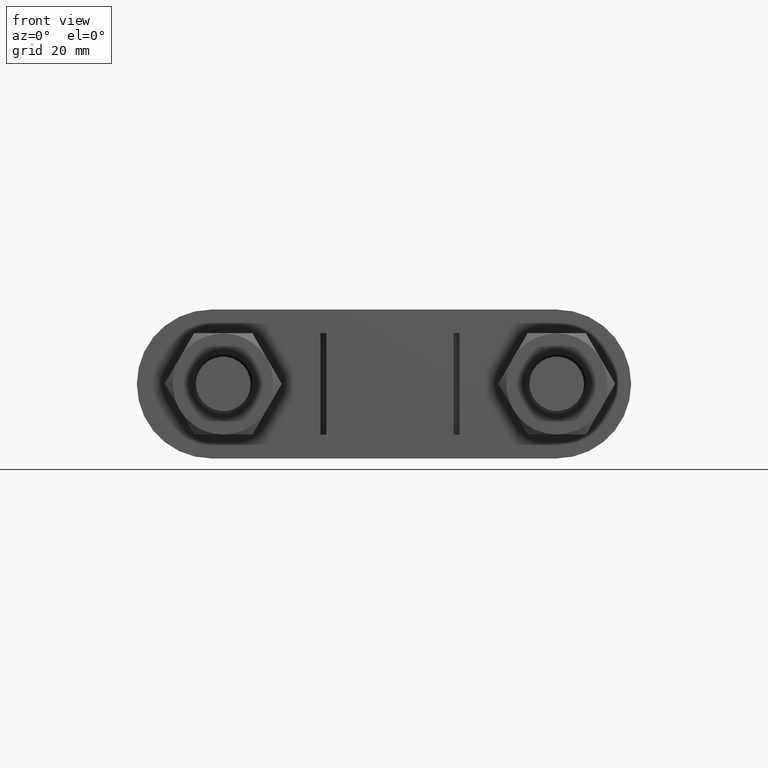
[diagram: clean part render]
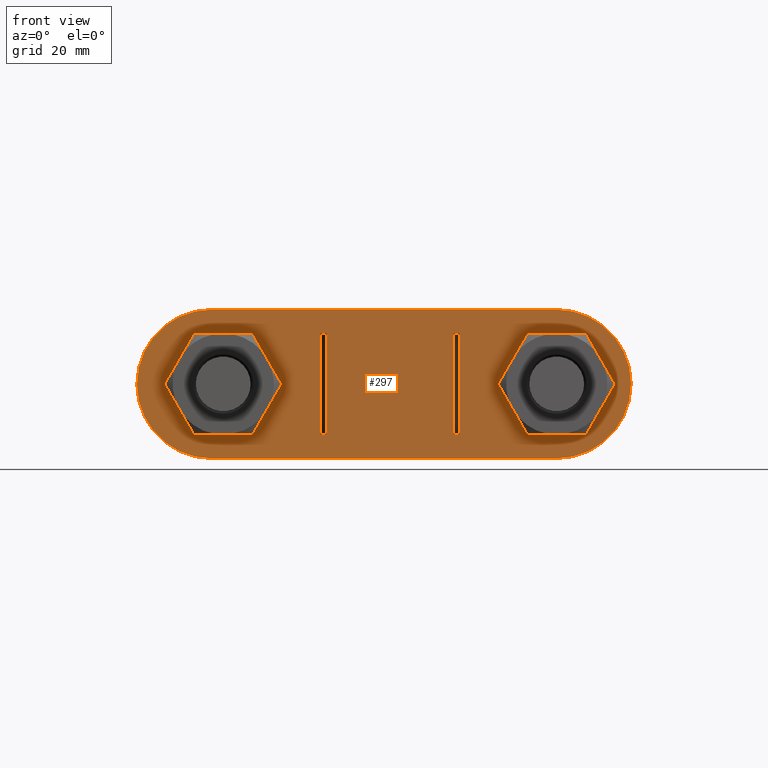
[diagram: same view with one face highlighted and labeled with its STEP entity id]
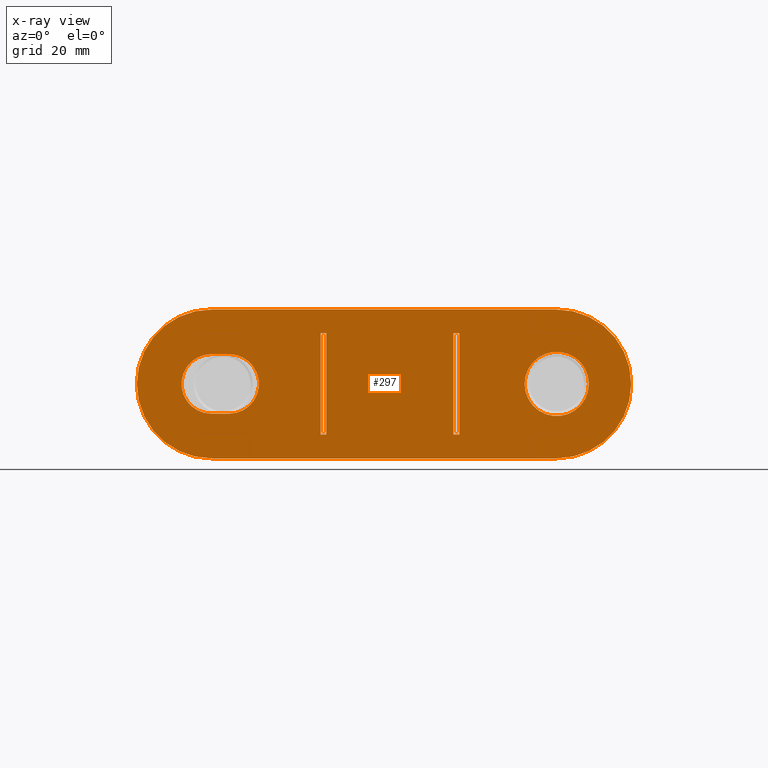
[diagram: x-ray of the same camera — body ghosted, the highlighted face saturated]
A machine part, front view. The second image highlights one B-rep face of the part: STEP entity #297.
The next image is the same camera in x-ray: the body ghosted, the highlighted face saturated — about 0% of this face is hidden behind the body in this view.
In plain terms, the highlighted planar face has unit normal (0, 1, -0).
Its self-contained STEP definition (entity closure, byte-faithful):
#297 = ADVANCED_FACE( '', ( #451, #452, #453, #454, #455 ), #456, .F. );
#451 = FACE_OUTER_BOUND( '', #1533, .T. );
#452 = FACE_BOUND( '', #1534, .T. );
#453 = FACE_BOUND( '', #1535, .T. );
#454 = FACE_BOUND( '', #1536, .T. );
#455 = FACE_BOUND( '', #1537, .T. );
#456 = PLANE( '', #1538 );
#1533 = EDGE_LOOP( '', ( #1912, #1913, #1914, #1915, #1916, #1917 ) );
#1534 = EDGE_LOOP( '', ( #1918, #1919, #1920, #1921 ) );
#1535 = EDGE_LOOP( '', ( #1922 ) );
#1536 = EDGE_LOOP( '', ( #1923, #1924, #1925, #1926 ) );
#1537 = EDGE_LOOP( '', ( #1927, #1928, #1929, #1930 ) );
#1538 = AXIS2_PLACEMENT_3D( '', #1931, #1932, #1933 );
#1912 = ORIENTED_EDGE( '', *, *, #2593, .F. );
#1913 = ORIENTED_EDGE( '', *, *, #2594, .F. );
#1914 = ORIENTED_EDGE( '', *, *, #2595, .F. );
#1915 = ORIENTED_EDGE( '', *, *, #2596, .F. );
#1916 = ORIENTED_EDGE( '', *, *, #2597, .F. );
#1917 = ORIENTED_EDGE( '', *, *, #2598, .F. );
#1918 = ORIENTED_EDGE( '', *, *, #2599, .F. );
#1919 = ORIENTED_EDGE( '', *, *, #2600, .T. );
#1920 = ORIENTED_EDGE( '', *, *, #2601, .T. );
#1921 = ORIENTED_EDGE( '', *, *, #2602, .F. );
#1922 = ORIENTED_EDGE( '', *, *, #2603, .T. );
#1923 = ORIENTED_EDGE( '', *, *, #2604, .F. );
#1924 = ORIENTED_EDGE( '', *, *, #2605, .F. );
#1925 = ORIENTED_EDGE( '', *, *, #2606, .F. );
#1926 = ORIENTED_EDGE( '', *, *, #2607, .F. );
#1927 = ORIENTED_EDGE( '', *, *, #2608, .T. );
#1928 = ORIENTED_EDGE( '', *, *, #2609, .T. );
#1929 = ORIENTED_EDGE( '', *, *, #2610, .F. );
#1930 = ORIENTED_EDGE( '', *, *, #2611, .F. );
#1931 = CARTESIAN_POINT( '', ( -30.0000000000000, 30.6000000000000, 1.40483290671490E-011 ) );
#1932 = DIRECTION( '', ( 7.63385177609124E-032, 1.00000000000000, -6.31954276302268E-016 ) );
#1933 = DIRECTION( '', ( 1.00000000000000, -1.09476442525376E-047, 1.20797533339895E-016 ) );
#2593 = EDGE_CURVE( '', #2863, #2864, #2865, .T. );
#2594 = EDGE_CURVE( '', #2866, #2863, #2867, .T. );
#2595 = EDGE_CURVE( '', #2868, #2866, #2869, .T. );
#2596 = EDGE_CURVE( '', #2870, #2868, #2871, .T. );
#2597 = EDGE_CURVE( '', #2872, #2870, #2873, .T. );
#2598 = EDGE_CURVE( '', #2864, #2872, #2874, .T. );
#2599 = EDGE_CURVE( '', #2875, #2876, #2877, .T. );
#2600 = EDGE_CURVE( '', #2875, #2878, #2879, .T. );
#2601 = EDGE_CURVE( '', #2878, #2880, #2881, .T. );
#2602 = EDGE_CURVE( '', #2876, #2880, #2882, .T. );
#2603 = EDGE_CURVE( '', #2883, #2883, #2884, .T. );
#2604 = EDGE_CURVE( '', #2885, #2886, #2887, .T. );
#2605 = EDGE_CURVE( '', #2888, #2885, #2889, .T. );
#2606 = EDGE_CURVE( '', #2890, #2888, #2891, .T. );
#2607 = EDGE_CURVE( '', #2886, #2890, #2892, .T. );
#2608 = EDGE_CURVE( '', #2893, #2894, #2895, .T. );
#2609 = EDGE_CURVE( '', #2894, #2896, #2897, .T. );
#2610 = EDGE_CURVE( '', #2898, #2896, #2899, .T. );
#2611 = EDGE_CURVE( '', #2893, #2898, #2900, .T. );
#2863 = VERTEX_POINT( '', #3504 );
#2864 = VERTEX_POINT( '', #3505 );
#2865 = CIRCLE( '', #3506, 12.5000000000000 );
#2866 = VERTEX_POINT( '', #3507 );
#2867 = CIRCLE( '', #3508, 12.5000000000000 );
#2868 = VERTEX_POINT( '', #3509 );
#2869 = LINE( '', #3510, #3511 );
#2870 = VERTEX_POINT( '', #3512 );
#2871 = CIRCLE( '', #3513, 12.5000000000000 );
#2872 = VERTEX_POINT( '', #3514 );
#2873 = CIRCLE( '', #3515, 12.5000000000000 );
#2874 = LINE( '', #3516, #3517 );
#2875 = VERTEX_POINT( '', #3518 );
#2876 = VERTEX_POINT( '', #3519 );
#2877 = LINE( '', #3520, #3521 );
#2878 = VERTEX_POINT( '', #3522 );
#2879 = LINE( '', #3523, #3524 );
#2880 = VERTEX_POINT( '', #3525 );
#2881 = LINE( '', #3526, #3527 );
#2882 = LINE( '', #3528, #3529 );
#2883 = VERTEX_POINT( '', #3530 );
#2884 = CIRCLE( '', #3531, 5.40000000000000 );
#2885 = VERTEX_POINT( '', #3532 );
#2886 = VERTEX_POINT( '', #3533 );
#2887 = CIRCLE( '', #3534, 5.00000000000000 );
#2888 = VERTEX_POINT( '', #3535 );
#2889 = LINE( '', #3536, #3537 );
#2890 = VERTEX_POINT( '', #3538 );
#2891 = CIRCLE( '', #3539, 5.00000000000000 );
#2892 = LINE( '', #3540, #3541 );
#2893 = VERTEX_POINT( '', #3542 );
#2894 = VERTEX_POINT( '', #3543 );
#2895 = LINE( '', #3544, #3545 );
#2896 = VERTEX_POINT( '', #3546 );
#2897 = LINE( '', #3547, #3548 );
#2898 = VERTEX_POINT( '', #3549 );
#2899 = LINE( '', #3550, #3551 );
#2900 = LINE( '', #3552, #3553 );
#3504 = CARTESIAN_POINT( '', ( -42.5000000000000, 30.6000000000000, 1.99075310796096E-011 ) );
#3505 = CARTESIAN_POINT( '', ( -29.9999999999942, 30.6000000000000, 12.5000000000140 ) );
#3506 = AXIS2_PLACEMENT_3D( '', #4118, #4119, #4120 );
#3507 = CARTESIAN_POINT( '', ( -30.0000000000059, 30.6000000000000, -12.4999999999859 ) );
#3508 = AXIS2_PLACEMENT_3D( '', #4121, #4122, #4123 );
#3509 = CARTESIAN_POINT( '', ( 27.9999999999941, 30.6000000000000, -12.5000000000131 ) );
#3510 = CARTESIAN_POINT( '', ( 27.9999999999941, 30.6000000000000, -12.5000000000131 ) );
#3511 = VECTOR( '', #4124, 1000.00000000000 );
#3512 = CARTESIAN_POINT( '', ( 40.5000000000000, 30.6000000000000, -1.89906313892248E-011 ) );
#3513 = AXIS2_PLACEMENT_3D( '', #4125, #4126, #4127 );
#3514 = CARTESIAN_POINT( '', ( 28.0000000000059, 30.6000000000000, 12.4999999999869 ) );
#3515 = AXIS2_PLACEMENT_3D( '', #4128, #4129, #4130 );
#3516 = CARTESIAN_POINT( '', ( -29.9999999999942, 30.6000000000000, 12.5000000000140 ) );
#3517 = VECTOR( '', #4131, 1000.00000000000 );
#3518 = CARTESIAN_POINT( '', ( -11.6500000000040, 30.6000000000000, -8.49999999999456 ) );
#3519 = CARTESIAN_POINT( '', ( -10.6500000000040, 30.6000000000000, -8.49999999999502 ) );
#3520 = CARTESIAN_POINT( '', ( -11.6500000000040, 30.6000000000000, -8.49999999999455 ) );
#3521 = VECTOR( '', #4132, 1000.00000000000 );
#3522 = CARTESIAN_POINT( '', ( -11.6499999999960, 30.6000000000000, 8.50000000000544 ) );
#3523 = CARTESIAN_POINT( '', ( -11.6500000000040, 30.6000000000000, -8.49999999999456 ) );
#3524 = VECTOR( '', #4133, 1000.00000000000 );
#3525 = CARTESIAN_POINT( '', ( -10.6499999999960, 30.6000000000000, 8.50000000000497 ) );
#3526 = CARTESIAN_POINT( '', ( -11.6499999999960, 30.6000000000000, 8.50000000000545 ) );
#3527 = VECTOR( '', #4134, 1000.00000000000 );
#3528 = CARTESIAN_POINT( '', ( -10.6500000000040, 30.6000000000000, -8.49999999999502 ) );
#3529 = VECTOR( '', #4135, 1000.00000000000 );
#3530 = CARTESIAN_POINT( '', ( 33.4000000000000, 30.6000000000000, -1.56764824339550E-011 ) );
#3531 = AXIS2_PLACEMENT_3D( '', #4136, #4137, #4138 );
#3532 = CARTESIAN_POINT( '', ( -29.9999999999977, 30.5999984999318, 5.00000000001403 ) );
#3533 = CARTESIAN_POINT( '', ( -30.0000000000024, 30.5999984999318, -4.99999999998596 ) );
#3534 = AXIS2_PLACEMENT_3D( '', #4139, #4140, #4141 );
#3535 = CARTESIAN_POINT( '', ( -26.9999999999977, 30.5999984999318, 5.00000000001263 ) );
#3536 = CARTESIAN_POINT( '', ( -26.9999999999977, 30.5999984999318, 5.00000000001263 ) );
#3537 = VECTOR( '', #4142, 1000.00000000000 );
#3538 = CARTESIAN_POINT( '', ( -27.0000000000024, 30.5999984999318, -4.99999999998737 ) );
#3539 = AXIS2_PLACEMENT_3D( '', #4143, #4144, #4145 );
#3540 = CARTESIAN_POINT( '', ( -30.0000000000024, 30.5999984999318, -4.99999999998596 ) );
#3541 = VECTOR( '', #4146, 1000.00000000000 );
#3542 = CARTESIAN_POINT( '', ( 11.6499999999965, 30.6000000000000, -8.50000000000573 ) );
#3543 = CARTESIAN_POINT( '', ( 10.6499999999964, 30.6000000000000, -8.50000000000526 ) );
#3544 = CARTESIAN_POINT( '', ( 11.6499999999965, 30.6000000000000, -8.50000000000573 ) );
#3545 = VECTOR( '', #4147, 1000.00000000000 );
#3546 = CARTESIAN_POINT( '', ( 10.6500000000044, 30.6000000000000, 8.49999999999525 ) );
#3547 = CARTESIAN_POINT( '', ( 10.6499999999964, 30.6000000000000, -8.50000000000526 ) );
#3548 = VECTOR( '', #4148, 1000.00000000000 );
#3549 = CARTESIAN_POINT( '', ( 11.6500000000044, 30.6000000000000, 8.49999999999477 ) );
#3550 = CARTESIAN_POINT( '', ( 11.6500000000044, 30.6000000000000, 8.49999999999478 ) );
#3551 = VECTOR( '', #4149, 1000.00000000000 );
#3552 = CARTESIAN_POINT( '', ( 11.6499999999965, 30.6000000000000, -8.50000000000573 ) );
#3553 = VECTOR( '', #4150, 1000.00000000000 );
#4118 = CARTESIAN_POINT( '', ( -30.0000000000000, 30.6000000000000, 1.40483290671490E-011 ) );
#4119 = DIRECTION( '', ( -1.20797533339895E-016, 1.00000000000000, -6.31954276302268E-016 ) );
#4120 = DIRECTION( '', ( -1.00000000000000, -1.20797533339599E-016, 4.68597383118769E-013 ) );
#4121 = CARTESIAN_POINT( '', ( -30.0000000000000, 30.6000000000000, 1.40517985141010E-011 ) );
#4122 = DIRECTION( '', ( -1.20797533339895E-016, 1.00000000000000, -6.31954276302268E-016 ) );
#4123 = DIRECTION( '', ( -4.68458605240691E-013, -6.31954276302325E-016, -1.00000000000000 ) );
#4124 = DIRECTION( '', ( -1.00000000000000, -1.20797533339599E-016, 4.68736160996847E-013 ) );
#4125 = CARTESIAN_POINT( '', ( 28.0000000000000, 30.6000000000000, -1.31348988237162E-011 ) );
#4126 = DIRECTION( '', ( -1.20797533339895E-016, 1.00000000000000, -6.31954276302268E-016 ) );
#4127 = DIRECTION( '', ( 1.00000000000000, 1.20797533339599E-016, -4.68597383118769E-013 ) );
#4128 = CARTESIAN_POINT( '', ( 28.0000000000000, 30.6000000000000, -1.31383682706681E-011 ) );
#4129 = DIRECTION( '', ( -1.20797533339895E-016, 1.00000000000000, -6.31954276302268E-016 ) );
#4130 = DIRECTION( '', ( 4.68181049484535E-013, 6.31954276302325E-016, 1.00000000000000 ) );
#4131 = DIRECTION( '', ( 1.00000000000000, 1.20797533339599E-016, -4.68736160996847E-013 ) );
#4132 = DIRECTION( '', ( 1.00000000000000, 1.20797533339599E-016, -4.68736160996847E-013 ) );
#4133 = DIRECTION( '', ( 4.68575793496141E-013, 9.09718935409084E-016, 1.00000000000000 ) );
#4134 = DIRECTION( '', ( 1.00000000000000, 1.20797533339599E-016, -4.68736160996847E-013 ) );
#4135 = DIRECTION( '', ( 4.68575793496141E-013, 9.09718935409084E-016, 1.00000000000000 ) );
#4136 = CARTESIAN_POINT( '', ( 28.0000000000000, 30.6000000000000, -1.31453071645720E-011 ) );
#4137 = DIRECTION( '', ( -1.20797533339895E-016, 1.00000000000000, -6.31954276302268E-016 ) );
#4138 = DIRECTION( '', ( 1.00000000000000, 1.20797533339599E-016, -4.68736160996847E-013 ) );
#4139 = CARTESIAN_POINT( '', ( -30.0000000000000, 30.5999984999318, 1.40361860037652E-011 ) );
#4140 = DIRECTION( '', ( 1.20797533339895E-016, -1.00000000000000, 6.31954276302268E-016 ) );
#4141 = DIRECTION( '', ( 4.68736160996847E-013, 6.31954276302325E-016, 1.00000000000000 ) );
#4142 = DIRECTION( '', ( -1.00000000000000, -1.20797533339599E-016, 4.68736160996847E-013 ) );
#4143 = CARTESIAN_POINT( '', ( -27.0000000000000, 30.5999984999318, 1.26299775207746E-011 ) );
#4144 = DIRECTION( '', ( 1.20797533339895E-016, -1.00000000000000, 6.31954276302268E-016 ) );
#4145 = DIRECTION( '', ( -4.68736160996847E-013, -6.31954276302325E-016, -1.00000000000000 ) );
#4146 = DIRECTION( '', ( 1.00000000000000, 1.20797533339599E-016, -4.68736160996847E-013 ) );
#4147 = DIRECTION( '', ( -1.00000000000000, 1.66310204263672E-018, 4.68736160996847E-013 ) );
#4148 = DIRECTION( '', ( 4.68896528497554E-013, 9.09718935409083E-016, 1.00000000000000 ) );
#4149 = DIRECTION( '', ( -1.00000000000000, 1.66310204263672E-018, 4.68736160996847E-013 ) );
#4150 = DIRECTION( '', ( 4.68896528497554E-013, 9.09718935409083E-016, 1.00000000000000 ) );